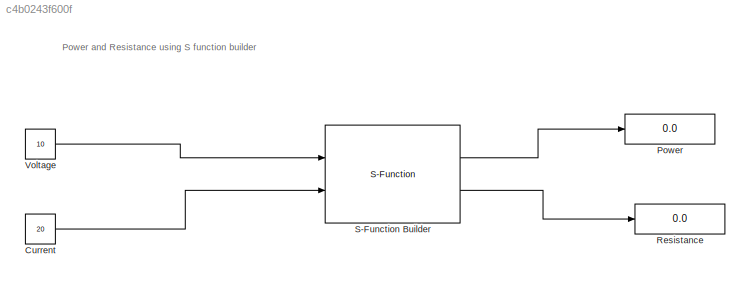
MODEL slx_c4b0243f600f
KIND model
CONFIG AbsTol = auto
CONFIG EnableMultiTasking = off
CONFIG FixedStep = auto
CONFIG MaxStep = auto
CONFIG MinStep = auto
CONFIG RelTol = 1e-3
CONFIG SampleTimeConstraint = Unconstrained
CONFIG Solver = VariableStepAuto
CONFIG SolverName = VariableStepAuto
CONFIG StartTime = 0.0
CONFIG StopTime = 10.0
BLOCK [Constant] Current
  Value = 20
BLOCK [Display] Power
  Decimation = 1
  Ports = [1]
BLOCK [Display] Resistance
  Decimation = 1
  Ports = [1]
BLOCK [S-Function] S-Function Builder
  CopyFcn = set_param(gcbh,'LinkStatus','none')
  EnableBusSupport = off
  FunctionName = powernresistance
  InitFcn = try, set_param(gcb,'FunctionName','powernresistance'), end
  OpenFcn = sfunctionwizard(gcbh)
  Ports = [2, 2]
  PreSaveFcn = try, set_param(gcb,'FunctionName','powernresistance'), end
  SFcnIsStateOwnerBlock = off
  SFunctionDeploymentMode = off
  SFunctionModules = powernresistance_wrapper
BLOCK [Constant] Voltage
  Value = 10
ANNOTATION (root): Power and Resistance using S function builder
LINE Current:1 -> S-Function Builder:2
LINE S-Function Builder:1 -> Power:1
LINE S-Function Builder:2 -> Resistance:1
LINE Voltage:1 -> S-Function Builder:1
